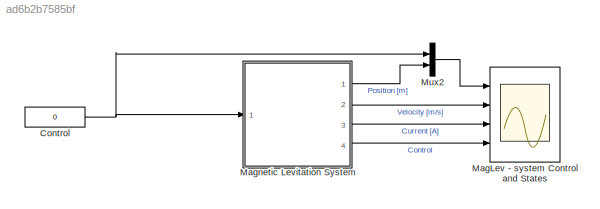
MODEL slx_ad6b2b7585bf
KIND model
CONFIG AbsTol = 1e-6
CONFIG FixedStep = 0.001
CONFIG MaxStep = auto
CONFIG MinStep = auto
CONFIG PostLoadFcn = load ML_Sensor
CONFIG RelTol = 1e-3
CONFIG SampleTimeConstraint = Unconstrained
CONFIG Solver = ode5
CONFIG SolverMode = SingleTasking
CONFIG SolverName = ode5
CONFIG StartTime = 0.0
CONFIG StopTime = 1000
BLOCK [Constant] Control
  Value = 0
BLOCK [Scope] MagLev - system Control and States
  DataFormat = StructureWithTime
  ExtModeLoggingTrig = on
  ExtModeUploadOption = log
  Floating = off
  MaxDataPoints = 10000
  NumInputPorts = 4
  Ports = [4]
  SampleTime = 0
  SaveName = MLExpData
  SaveToWorkspace = on
  TimeRange = 10
  YMax = 0.65~3~1~1
  YMin = 0~-16~0.8~-1
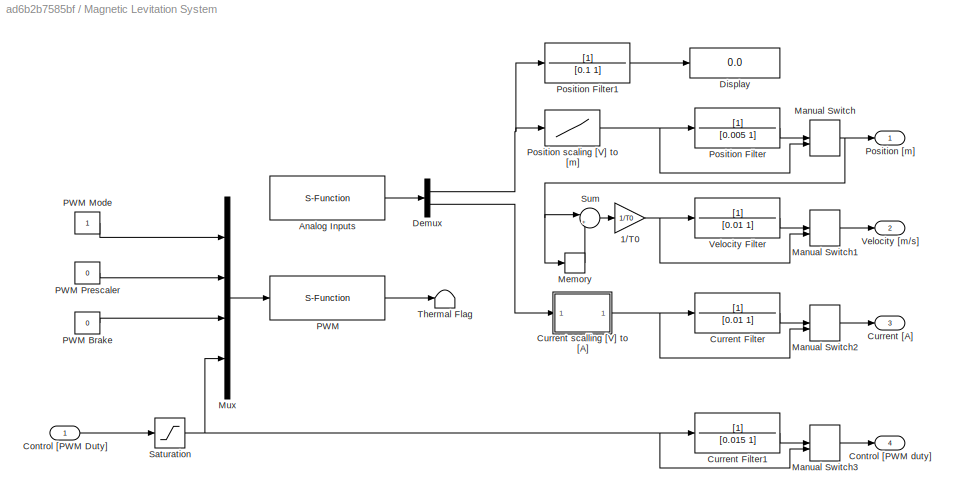
BLOCK [SubSystem] Magnetic Levitation System
  Ports = [1, 4]
  RequestExecContextInheritance = off
BLOCK [Gain] Magnetic Levitation System/1//T0
  Gain = 1/T0
BLOCK [S-Function] Magnetic Levitation System/Analog Inputs
  FunctionName = ML_AnalogInputs
  Parameters = BA, [4 2], [1 1], T0
  Ports = [0, 1]
BLOCK [Inport] Magnetic Levitation System/Control [PWM Duty]
  IconDisplay = Port number
BLOCK [Outport] Magnetic Levitation System/Control [PWM duty]
  IconDisplay = Port number
  Port = 4
BLOCK [TransferFcn] Magnetic Levitation System/Current Filter
  Denominator = [0.01 1]
BLOCK [TransferFcn] Magnetic Levitation System/Current Filter1
  Denominator = [0.015 1]
BLOCK [Outport] Magnetic Levitation System/Current [A]
  IconDisplay = Port number
  Port = 3
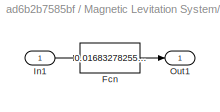
BLOCK [SubSystem] Magnetic Levitation System/Current scalling [V] to [A]
  Ports = [1, 1]
  RequestExecContextInheritance = off
BLOCK [Fcn] Magnetic Levitation System/Current scalling [V] to [A]/Fcn
  Expr = 0.01683278255001*u(1)^2 +1.04509985660788*u(1) - 0.03168808638247
BLOCK [Inport] Magnetic Levitation System/Current scalling [V] to [A]/In1
  IconDisplay = Port number
BLOCK [Outport] Magnetic Levitation System/Current scalling [V] to [A]/Out1
  IconDisplay = Port number
BLOCK [Demux] Magnetic Levitation System/Demux
  Outputs = 2
  Ports = [1, 2]
BLOCK [Display] Magnetic Levitation System/Display
  Decimation = 1
  Ports = [1]
BLOCK [ManualSwitch] Magnetic Levitation System/Manual Switch
  CurrentSetting = 0
BLOCK [ManualSwitch] Magnetic Levitation System/Manual Switch1
  CurrentSetting = 0
BLOCK [ManualSwitch] Magnetic Levitation System/Manual Switch2
  CurrentSetting = 0
BLOCK [ManualSwitch] Magnetic Levitation System/Manual Switch3
  CurrentSetting = 0
BLOCK [Memory] Magnetic Levitation System/Memory
BLOCK [Mux] Magnetic Levitation System/Mux
  DisplayOption = bar
  Ports = [4, 1]
BLOCK [S-Function] Magnetic Levitation System/PWM
  FunctionName = ML_PWM
  Parameters = BA, T0
  Ports = [1, 1]
BLOCK [Constant] Magnetic Levitation System/PWM Brake
  Value = 0
BLOCK [Constant] Magnetic Levitation System/PWM Mode
BLOCK [Constant] Magnetic Levitation System/PWM Prescaler
  Value = 0
BLOCK [TransferFcn] Magnetic Levitation System/Position Filter
  Denominator = [0.005 1]
BLOCK [TransferFcn] Magnetic Levitation System/Position Filter1
  Denominator = [0.1 1]
BLOCK [Outport] Magnetic Levitation System/Position [m]
  IconDisplay = Port number
BLOCK [Lookup] Magnetic Levitation System/Position scaling [V] to [m]
  InputValues = SensorData.Sensor_V(end:-1:1)
  Table = SensorData.Distance_m(end:-1:1)
BLOCK [Saturate] Magnetic Levitation System/Saturation
  InputPortMap = u0
  LowerLimit = 0
  Ports = [1, 1]
  UpperLimit = 1
BLOCK [Sum] Magnetic Levitation System/Sum
  IconShape = round
  Inputs = |+-
  Ports = [2, 1]
BLOCK [Terminator] Magnetic Levitation System/Thermal Flag
BLOCK [TransferFcn] Magnetic Levitation System/Velocity Filter
  Denominator = [0.01 1]
BLOCK [Outport] Magnetic Levitation System/Velocity [m//s]
  IconDisplay = Port number
  Port = 2
BLOCK [Mux] Mux2
  DisplayOption = bar
  Inputs = 2
  Ports = [2, 1]
NET Control:1 -> Magnetic Levitation System:1, Mux2:1
NET Magnetic Levitation System/1//T0:1 -> Magnetic Levitation System/Manual Switch1:2, Magnetic Levitation System/Velocity Filter:1
LINE Magnetic Levitation System/Analog Inputs:1 -> Magnetic Levitation System/Demux:1
LINE Magnetic Levitation System/Control [PWM Duty]:1 -> Magnetic Levitation System/Saturation:1
LINE Magnetic Levitation System/Current Filter1:1 -> Magnetic Levitation System/Manual Switch3:1
LINE Magnetic Levitation System/Current Filter:1 -> Magnetic Levitation System/Manual Switch2:1
LINE Magnetic Levitation System/Current scalling [V] to [A]/Fcn:1 -> Magnetic Levitation System/Current scalling [V] to [A]/Out1:1
LINE Magnetic Levitation System/Current scalling [V] to [A]/In1:1 -> Magnetic Levitation System/Current scalling [V] to [A]/Fcn:1
NET Magnetic Levitation System/Current scalling [V] to [A]:1 -> Magnetic Levitation System/Current Filter:1, Magnetic Levitation System/Manual Switch2:2
NET Magnetic Levitation System/Demux:1 -> Magnetic Levitation System/Position Filter1:1, Magnetic Levitation System/Position scaling [V] to [m]:1
LINE Magnetic Levitation System/Demux:2 -> Magnetic Levitation System/Current scalling [V] to [A]:1
LINE Magnetic Levitation System/Manual Switch1:1 -> Magnetic Levitation System/Velocity [m//s]:1
LINE Magnetic Levitation System/Manual Switch2:1 -> Magnetic Levitation System/Current [A]:1
LINE Magnetic Levitation System/Manual Switch3:1 -> Magnetic Levitation System/Control [PWM duty]:1
NET Magnetic Levitation System/Manual Switch:1 -> Magnetic Levitation System/Memory:1, Magnetic Levitation System/Position [m]:1, Magnetic Levitation System/Sum:1
LINE Magnetic Levitation System/Memory:1 -> Magnetic Levitation System/Sum:2
LINE Magnetic Levitation System/Mux:1 -> Magnetic Levitation System/PWM:1
LINE Magnetic Levitation System/PWM Brake:1 -> Magnetic Levitation System/Mux:3
LINE Magnetic Levitation System/PWM Mode:1 -> Magnetic Levitation System/Mux:1
LINE Magnetic Levitation System/PWM Prescaler:1 -> Magnetic Levitation System/Mux:2
LINE Magnetic Levitation System/PWM:1 -> Magnetic Levitation System/Thermal Flag:1
LINE Magnetic Levitation System/Position Filter1:1 -> Magnetic Levitation System/Display:1
LINE Magnetic Levitation System/Position Filter:1 -> Magnetic Levitation System/Manual Switch:1
NET Magnetic Levitation System/Position scaling [V] to [m]:1 -> Magnetic Levitation System/Manual Switch:2, Magnetic Levitation System/Position Filter:1
NET Magnetic Levitation System/Saturation:1 -> Magnetic Levitation System/Current Filter1:1, Magnetic Levitation System/Manual Switch3:2, Magnetic Levitation System/Mux:4
LINE Magnetic Levitation System/Sum:1 -> Magnetic Levitation System/1//T0:1
LINE Magnetic Levitation System/Velocity Filter:1 -> Magnetic Levitation System/Manual Switch1:1
LINE Magnetic Levitation System:1 -> Mux2:2
LINE Magnetic Levitation System:2 -> MagLev - system Control and States:2
LINE Magnetic Levitation System:3 -> MagLev - system Control and States:3
LINE Magnetic Levitation System:4 -> MagLev - system Control and States:4
LINE Mux2:1 -> MagLev - system Control and States:1
note: NET lines group one-source signal fan-out (src -> all destinations, sorted); 1:1 wires keep LINE
